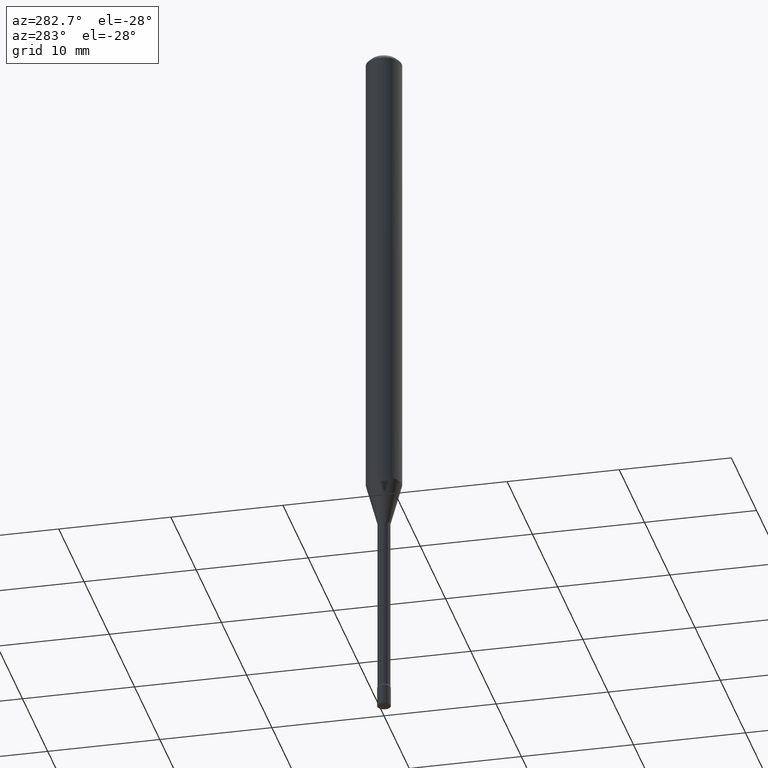
[diagram: clean part render]
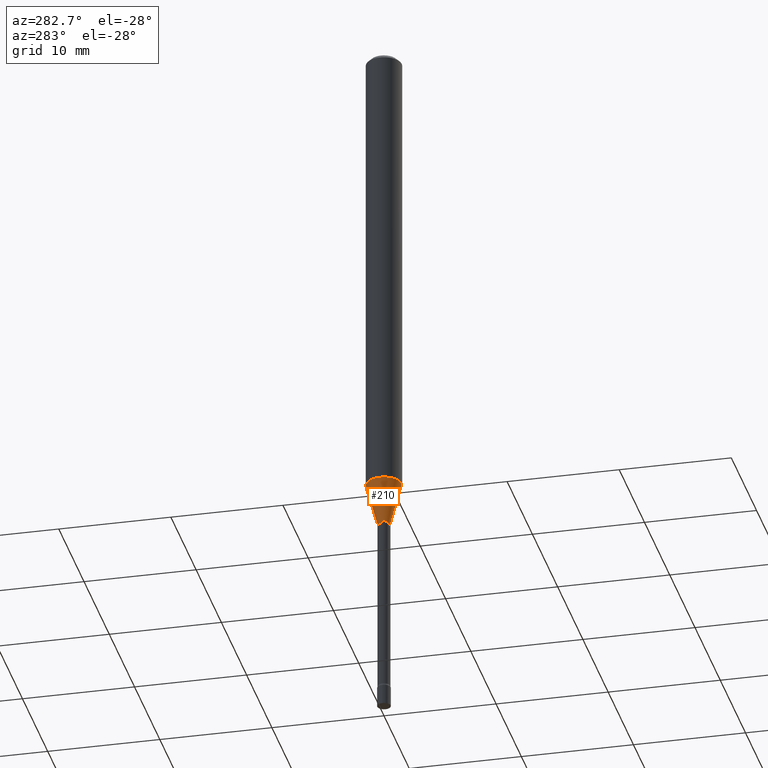
[diagram: same view with one face highlighted and labeled with its STEP entity id]
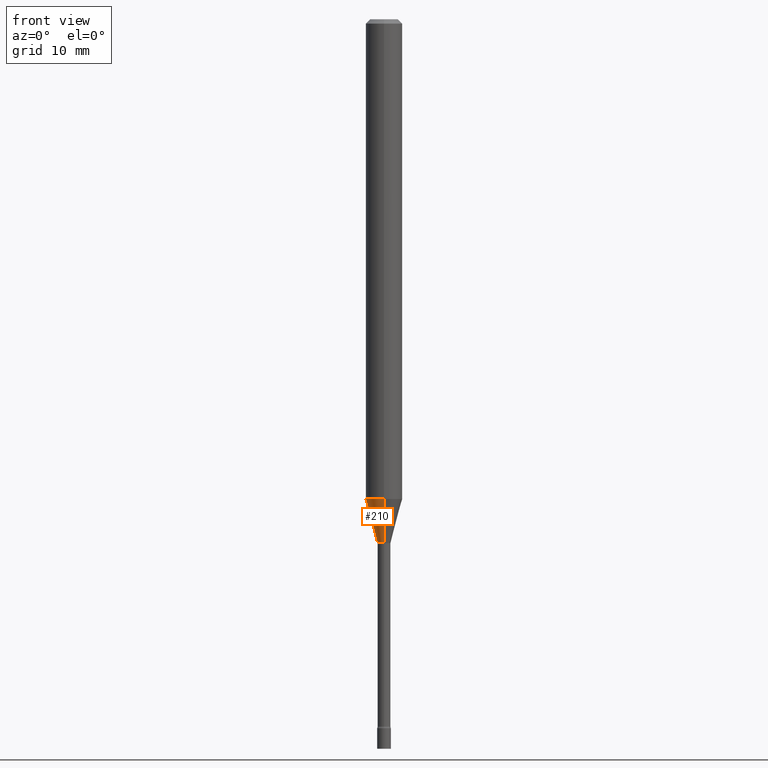
[diagram: same view with one face highlighted and labeled with its STEP entity id]
A machine part, auxiliary view. The second image highlights one B-rep face of the part: STEP entity #210.
A second angle (front view) of the same face is appended — the face is thin or edge-on in the first view.
In plain terms, the highlighted conical surface has half-angle 15 deg.
Its self-contained STEP definition (entity closure, byte-faithful):
#10 = CONICAL_SURFACE ( 'NONE', #513, 0.02261111260566398690, 0.2617993877991501295 ) ;
#14 = DIRECTION ( 'NONE',  ( -6.982962677686265922E-15, -1.000000000000000000, 4.370956789862821150E-15 ) ) ;
#15 = EDGE_CURVE ( 'NONE', #486, #99, #35, .T. ) ;
#16 = ORIENTED_EDGE ( 'NONE', *, *, #15, .T. ) ;
#35 = LINE ( 'NONE', #352, #380 ) ;
#55 = AXIS2_PLACEMENT_3D ( 'NONE', #274, #280, #362 ) ;
#56 = VERTEX_POINT ( 'NONE', #238 ) ;
#99 = VERTEX_POINT ( 'NONE', #396 ) ;
#113 = AXIS2_PLACEMENT_3D ( 'NONE', #247, #125, #14 ) ;
#115 = EDGE_CURVE ( 'NONE', #56, #486, #451, .T. ) ;
#124 = LINE ( 'NONE', #450, #309 ) ;
#125 = DIRECTION ( 'NONE',  ( -2.445459864664737566E-29, 3.491494143609276784E-15, 1.000000000000000000 ) ) ;
#162 = CARTESIAN_POINT ( 'NONE',  ( 4.384935746752060806E-29, -6.260571968939970846E-15, -1.793092501787273196 ) ) ;
#167 = CARTESIAN_POINT ( 'NONE',  ( -1.578925554262692203E-16, -0.02261111260567024925, -1.793092501787273196 ) ) ;
#190 = ORIENTED_EDGE ( 'NONE', *, *, #431, .F. ) ;
#210 = ADVANCED_FACE ( 'NONE', ( #291 ), #10, .T. ) ;
#238 = CARTESIAN_POINT ( 'NONE',  ( 3.023754139721142721E-16, 0.02261111260565773148, -1.793092501787273196 ) ) ;
#247 = CARTESIAN_POINT ( 'NONE',  ( 4.020886606376113285E-29, -5.740802472832181902E-15, -1.644225147374217988 ) ) ;
#266 = ORIENTED_EDGE ( 'NONE', *, *, #397, .F. ) ;
#274 = CARTESIAN_POINT ( 'NONE',  ( 4.384935746752060806E-29, -6.260571968939970846E-15, -1.793092501787273196 ) ) ;
#280 = DIRECTION ( 'NONE',  ( -2.445459864664737566E-29, 3.491494143609276784E-15, 1.000000000000000000 ) ) ;
#281 = CIRCLE ( 'NONE', #113, 0.06250000000000000000 ) ;
#288 = DIRECTION ( 'NONE',  ( 1.839019923739599526E-15, 0.2588190451025248473, 0.9659258262890673130 ) ) ;
#291 = FACE_OUTER_BOUND ( 'NONE', #465, .T. ) ;
#309 = VECTOR ( 'NONE', #288, 39.37007874015747433 ) ;
#323 = DIRECTION ( 'NONE',  ( -1.807323732225328562E-15, -0.2588190451025179639, 0.9659258262890689783 ) ) ;
#326 = DIRECTION ( 'NONE',  ( -2.445459864664737566E-29, 3.491494143609276784E-15, 1.000000000000000000 ) ) ;
#352 = CARTESIAN_POINT ( 'NONE',  ( -1.578925554262692203E-16, -0.02261111260567024925, -1.793092501787273196 ) ) ;
#362 = DIRECTION ( 'NONE',  ( -6.982962677686265922E-15, -1.000000000000000000, 0.000000000000000000 ) ) ;
#375 = ORIENTED_EDGE ( 'NONE', *, *, #115, .T. ) ;
#380 = VECTOR ( 'NONE', #323, 39.37007874015749564 ) ;
#396 = CARTESIAN_POINT ( 'NONE',  ( -4.364351673553515854E-16, -0.06250000000000575928, -1.644225147374217544 ) ) ;
#397 = EDGE_CURVE ( 'NONE', #56, #510, #124, .T. ) ;
#403 = DIRECTION ( 'NONE',  ( -6.982962677686265922E-15, -1.000000000000000000, 0.000000000000000000 ) ) ;
#425 = CARTESIAN_POINT ( 'NONE',  ( 4.440892098501025523E-16, 0.06249999999999423378, -1.644225147374218210 ) ) ;
#431 = EDGE_CURVE ( 'NONE', #510, #99, #281, .T. ) ;
#450 = CARTESIAN_POINT ( 'NONE',  ( 1.606616180941255974E-16, 0.02261111260565772454, -1.793092501787273196 ) ) ;
#451 = CIRCLE ( 'NONE', #55, 0.02261111260566398690 ) ;
#465 = EDGE_LOOP ( 'NONE', ( #266, #375, #16, #190 ) ) ;
#486 = VERTEX_POINT ( 'NONE', #167 ) ;
#510 = VERTEX_POINT ( 'NONE', #425 ) ;
#513 = AXIS2_PLACEMENT_3D ( 'NONE', #162, #326, #403 ) ;